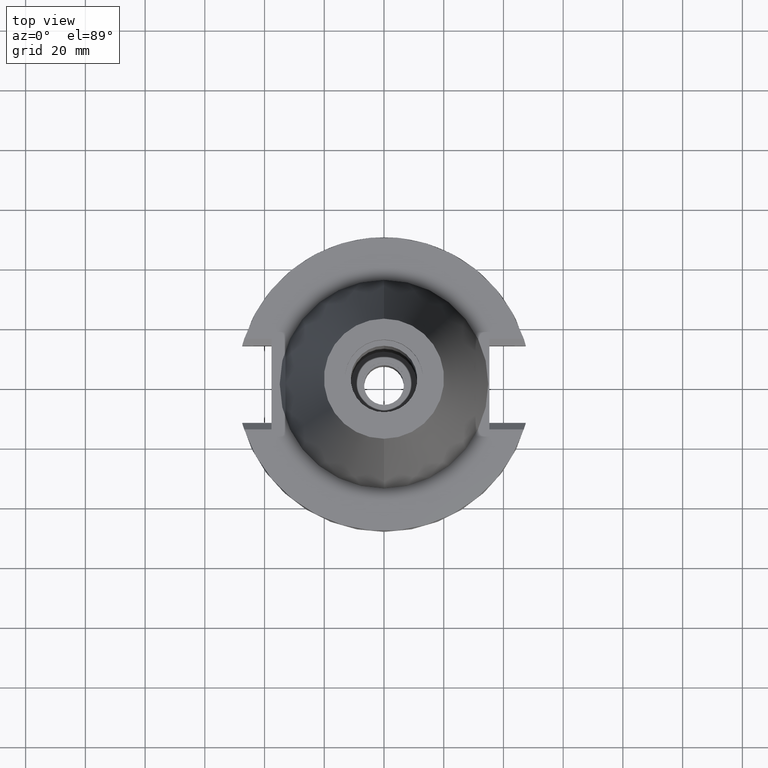
[diagram: clean part render]
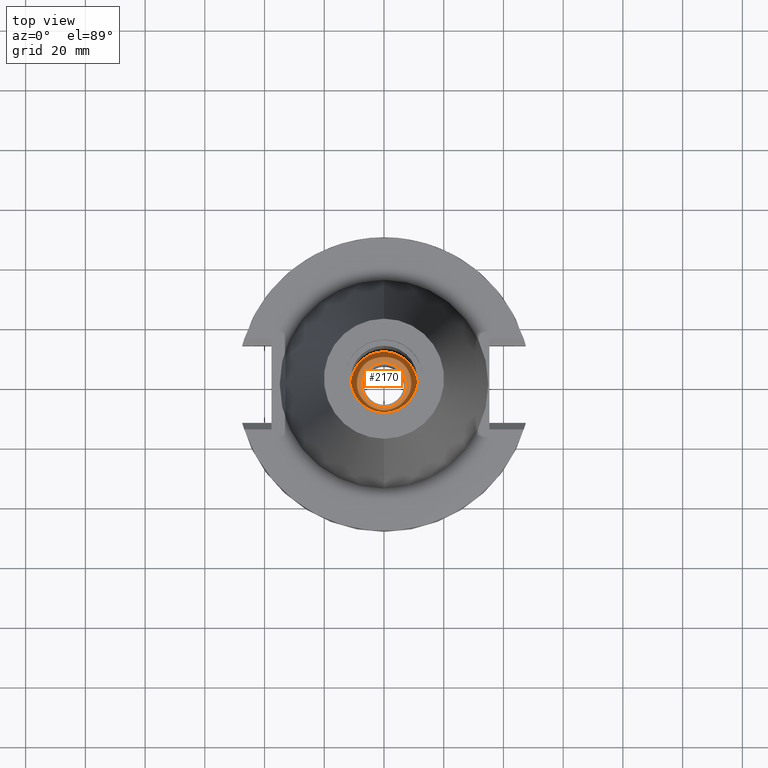
[diagram: same view with one face highlighted and labeled with its STEP entity id]
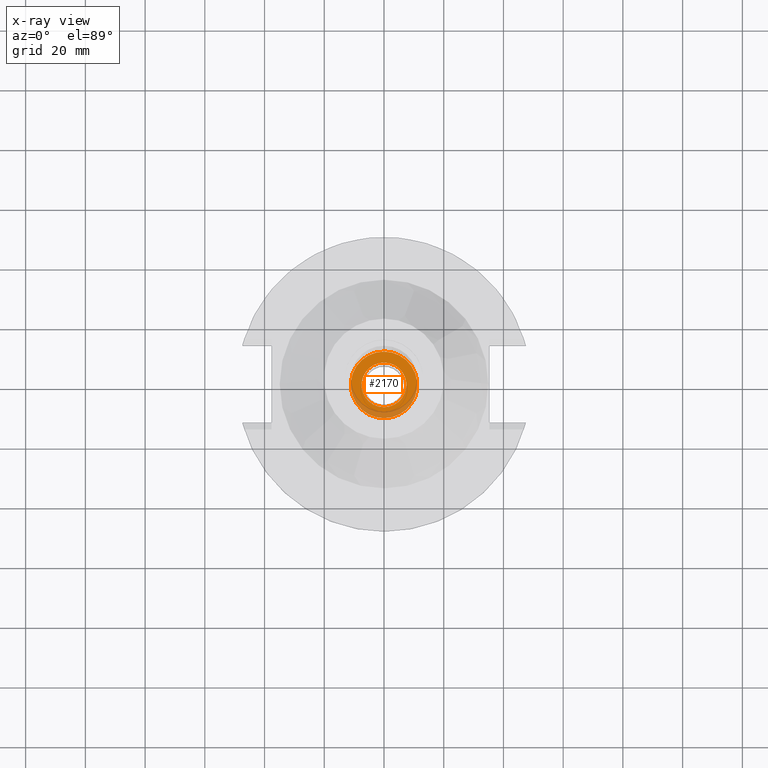
[diagram: x-ray of the same camera — body ghosted, the highlighted face saturated]
A machine part, top view. The second image highlights one B-rep face of the part: STEP entity #2170.
The next image is the same camera in x-ray: the body ghosted, the highlighted face saturated — about 21% of this face is hidden behind the body in this view.
In plain terms, the highlighted planar face has unit normal (0, 0, -1).
Its self-contained STEP definition (entity closure, byte-faithful):
#13 = DIRECTION ( 'NONE',  ( 0.0000000000000000000, 1.000000000000000000, 0.0000000000000000000 ) ) ;
#180 = AXIS2_PLACEMENT_3D ( 'NONE', #1018, #240, #13 ) ;
#240 = DIRECTION ( 'NONE',  ( 0.0000000000000000000, 0.0000000000000000000, -1.000000000000000000 ) ) ;
#394 = CIRCLE ( 'NONE', #180, 11.15000000000000036 ) ;
#431 = DIRECTION ( 'NONE',  ( 0.0000000000000000000, 0.0000000000000000000, -1.000000000000000000 ) ) ;
#440 = AXIS2_PLACEMENT_3D ( 'NONE', #2083, #533, #1612 ) ;
#470 = EDGE_CURVE ( 'NONE', #1156, #2043, #717, .T. ) ;
#488 = EDGE_LOOP ( 'NONE', ( #1746, #2486 ) ) ;
#533 = DIRECTION ( 'NONE',  ( 0.0000000000000000000, 0.0000000000000000000, 1.000000000000000000 ) ) ;
#701 = FACE_BOUND ( 'NONE', #2653, .T. ) ;
#717 = CIRCLE ( 'NONE', #440, 7.500000000000000000 ) ;
#727 = CARTESIAN_POINT ( 'NONE',  ( 0.0000000000000000000, -7.500000000000000000, -18.39999999999999858 ) ) ;
#743 = CARTESIAN_POINT ( 'NONE',  ( 0.0000000000000000000, 2.588719636377999795E-14, -18.39999999999999858 ) ) ;
#828 = AXIS2_PLACEMENT_3D ( 'NONE', #1239, #975, #989 ) ;
#892 = CARTESIAN_POINT ( 'NONE',  ( 0.0000000000000000000, 7.500000000000000000, -18.39999999999999858 ) ) ;
#894 = CARTESIAN_POINT ( 'NONE',  ( 0.0000000000000000000, 11.15000000000000036, -18.39999999999999858 ) ) ;
#933 = EDGE_CURVE ( 'NONE', #2043, #1156, #1974, .T. ) ;
#975 = DIRECTION ( 'NONE',  ( 0.0000000000000000000, 0.0000000000000000000, 1.000000000000000000 ) ) ;
#989 = DIRECTION ( 'NONE',  ( 0.0000000000000000000, -1.000000000000000000, 0.0000000000000000000 ) ) ;
#1018 = CARTESIAN_POINT ( 'NONE',  ( 0.0000000000000000000, 2.588719636377999795E-14, -18.39999999999999858 ) ) ;
#1156 = VERTEX_POINT ( 'NONE', #892 ) ;
#1239 = CARTESIAN_POINT ( 'NONE',  ( 0.0000000000000000000, 2.588719636377999795E-14, -18.39999999999999858 ) ) ;
#1240 = CARTESIAN_POINT ( 'NONE',  ( 0.0000000000000000000, 0.0000000000000000000, -18.39999999999999858 ) ) ;
#1249 = DIRECTION ( 'NONE',  ( 0.0000000000000000000, -1.000000000000000000, 0.0000000000000000000 ) ) ;
#1474 = DIRECTION ( 'NONE',  ( 0.0000000000000000000, 0.0000000000000000000, -1.000000000000000000 ) ) ;
#1513 = ORIENTED_EDGE ( 'NONE', *, *, #470, .F. ) ;
#1546 = AXIS2_PLACEMENT_3D ( 'NONE', #1240, #1474, #2765 ) ;
#1598 = CIRCLE ( 'NONE', #2740, 11.15000000000000036 ) ;
#1612 = DIRECTION ( 'NONE',  ( 0.0000000000000000000, 1.000000000000000000, 0.0000000000000000000 ) ) ;
#1734 = PLANE ( 'NONE',  #1546 ) ;
#1746 = ORIENTED_EDGE ( 'NONE', *, *, #2743, .F. ) ;
#1974 = CIRCLE ( 'NONE', #828, 7.500000000000000000 ) ;
#2043 = VERTEX_POINT ( 'NONE', #727 ) ;
#2083 = CARTESIAN_POINT ( 'NONE',  ( 0.0000000000000000000, 2.588719636377999795E-14, -18.39999999999999858 ) ) ;
#2091 = EDGE_CURVE ( 'NONE', #2652, #2388, #1598, .T. ) ;
#2170 = ADVANCED_FACE ( 'NONE', ( #3015, #701 ), #1734, .F. ) ;
#2270 = CARTESIAN_POINT ( 'NONE',  ( 0.0000000000000000000, -11.15000000000000036, -18.39999999999999858 ) ) ;
#2388 = VERTEX_POINT ( 'NONE', #894 ) ;
#2486 = ORIENTED_EDGE ( 'NONE', *, *, #2091, .F. ) ;
#2652 = VERTEX_POINT ( 'NONE', #2270 ) ;
#2653 = EDGE_LOOP ( 'NONE', ( #1513, #3324 ) ) ;
#2740 = AXIS2_PLACEMENT_3D ( 'NONE', #743, #431, #1249 ) ;
#2743 = EDGE_CURVE ( 'NONE', #2388, #2652, #394, .T. ) ;
#2765 = DIRECTION ( 'NONE',  ( 0.0000000000000000000, -1.000000000000000000, 0.0000000000000000000 ) ) ;
#3015 = FACE_OUTER_BOUND ( 'NONE', #488, .T. ) ;
#3324 = ORIENTED_EDGE ( 'NONE', *, *, #933, .F. ) ;